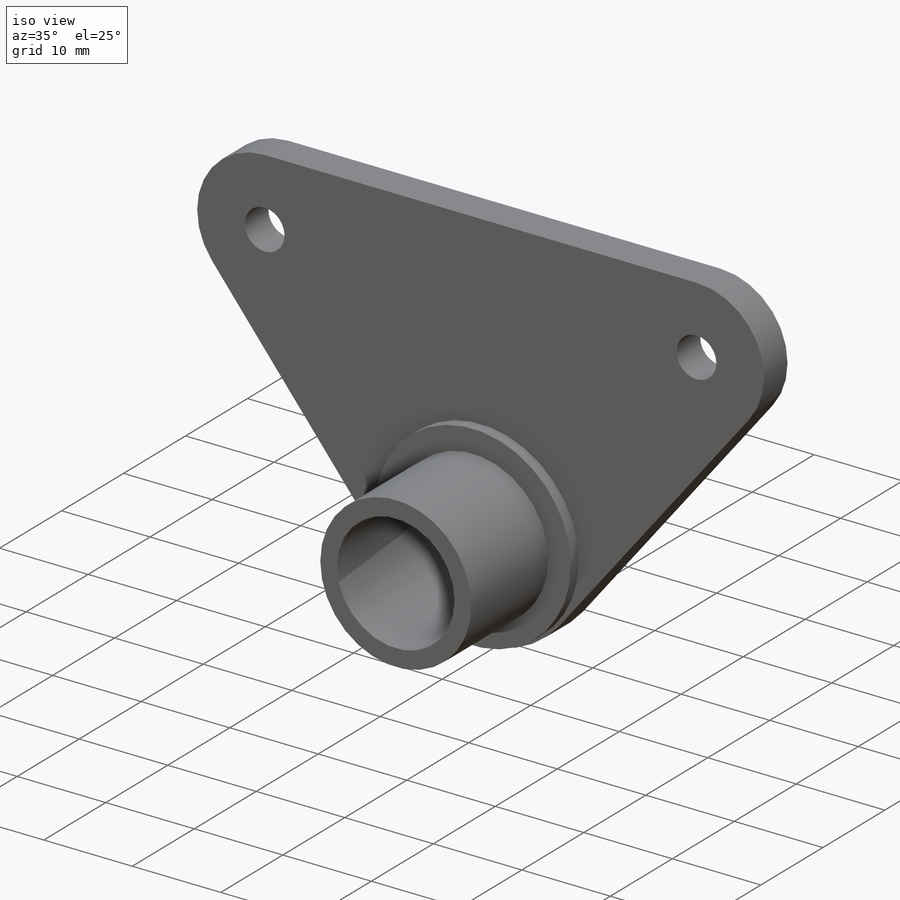
[diagram: iso view]
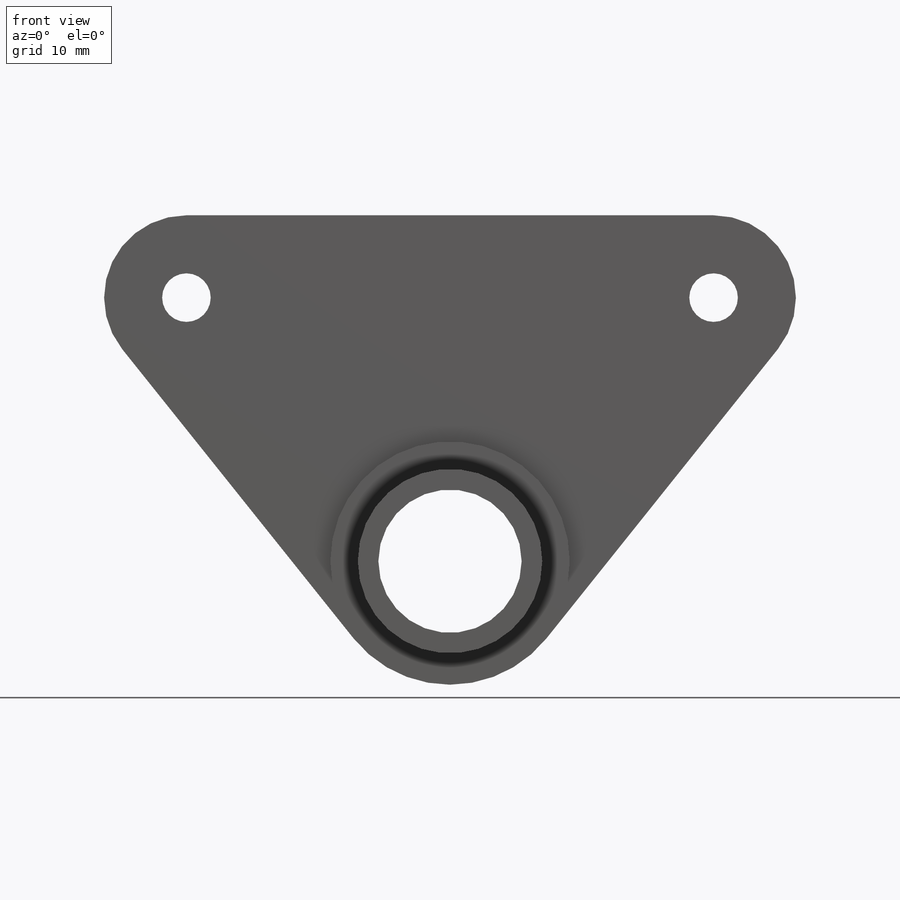
[diagram: front view]
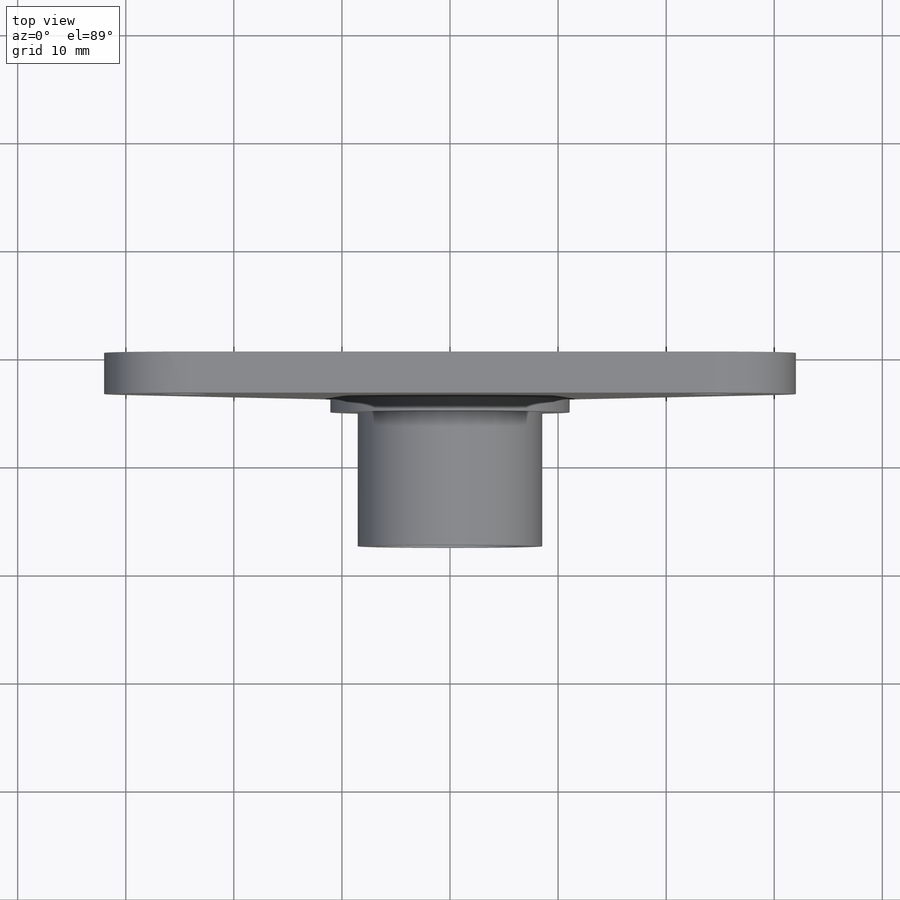
[diagram: top view]
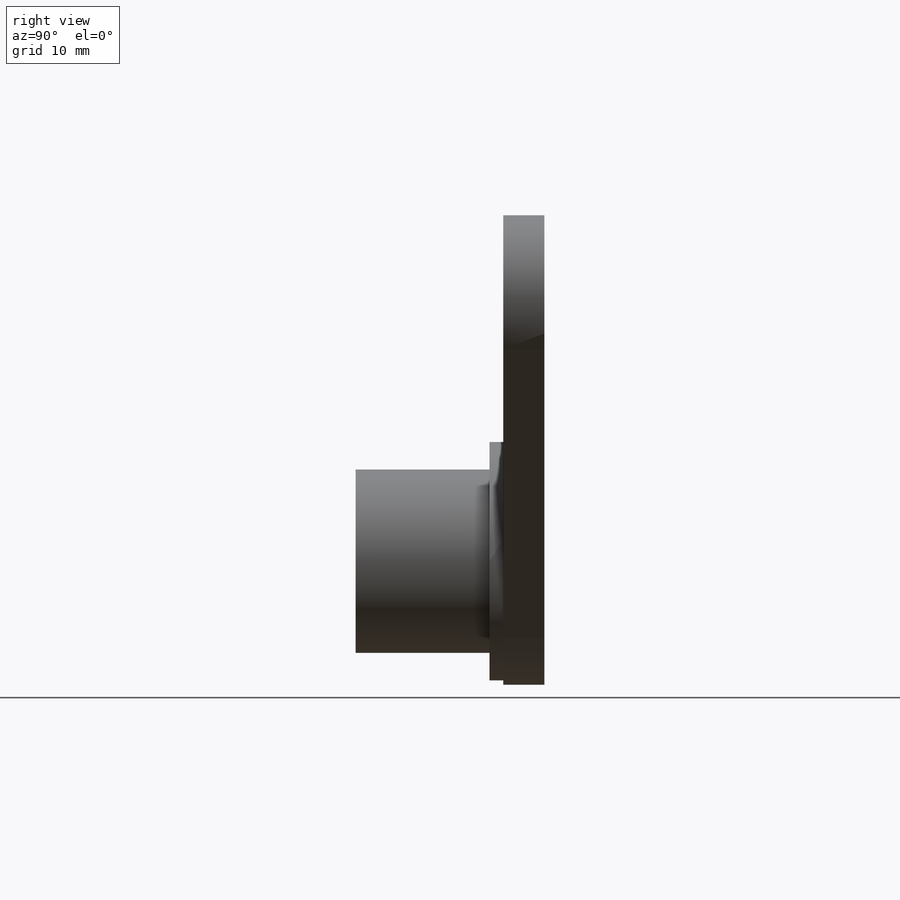
[diagram: right view]
SOLIDWORKS PART (.sldprt)
format: sldprt  version: not decoded by parser v0  size: 251,392 bytes
history: native  units: mm
features: sketch x6, extrude x3, material x1, cut_extrude x1, hole x1 (+13 scaffold rows collapsed)
feature tree (25):
  scaffold x13  (default folders/planes/origin — collapsed)
  material  "Material <not specified>"
  sketch  "Sketch1"  dims[c1.D3=5.0mm c1.D4=5.0mm c1.D5=5.0mm c1.D6=5.0mm c1.D11=3.81mm c1.D12=3.81mm c1.D9=22.86mm c1.D1=56.4mm c1.D2=56.4mm c1.D7=47.14mm c1.D8=47.14mm c2.D9=47.14mm c2.D10=47.14mm c2.D11=47.14mm c2.D5=47.14mm c3.D5=60.0deg c3.D6=47.14mm c4.D6=60.0deg c4.D10=~48.262822mm c4.D9=~48.262822mm c4.D13=3.81mm c4.D8=8.382mm]
  extrude  "Boss-Extrude1"  Depth=3.81mm
  sketch  "Sketch2"  dims[D1=17.0688mm D2=1.905mm]
  extrude  "Boss-Extrude2"  Depth=17.4752mm
  sketch  "Sketch4"
  cut_extrude  "Cut-Extrude2"  [1 undecoded]
  sketch  "Sketch5"  dims[D1=0.0mm D2=2.54mm]
  extrude  "Boss-Extrude3"  Depth=1.27mm
  hole  "#8 Clearance Hole1"  Diameter=4.4958mm Depth=3.81mm
  sketch  "Sketch7"
  sketch  "Sketch6"  dims[hole-wizard template sketch: 60 standard entries collapsed; hole parameters kept: c18.Thru Hole Depth=3.81mm]
decode coverage: 8 of 11 modeling features carry decoded parameters
note: ~ marks probable driven/reference dimensions
note: 1 parameter value undecoded
note: suppression state not decoded; provenance and decode notes live in map.json
